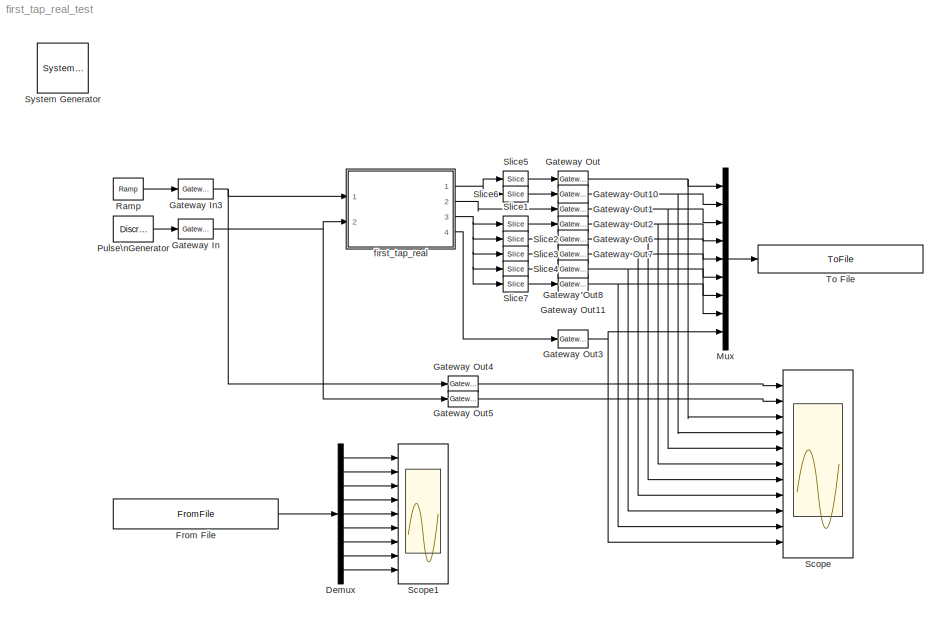
MODEL first_tap_real_test
KIND model
BLOCK [Reference]  System Generator  REF=xbsIndex_r4/ System Generator
  AttributesFormatString = System\\nGenerator
  FunctionWithSeparateData = off
  Ports = []
  RTWMemSecDataConstants = Inherit from model
  RTWMemSecDataInternal = Inherit from model
  RTWMemSecDataParameters = Inherit from model
  RTWMemSecFuncExecute = Inherit from model
  RTWMemSecFuncInitTerm = Inherit from model
  ShowPortLabels = FromPortIcon
  SourceBlock = xbsIndex_r4/ System Generator
  SourceType = Xilinx System Generator Block
  SystemSampleTime = -1
  Tag = genX
  UserData = DataTag0
  UserDataPersistent = on
  block_type = sysgen
  block_version = 10.1.1
  clock_wrapper = Clock Enables
  core_generation = According to Block Masks
  dbl_ovrd = According to Block Masks
  dcm_input_clock_period = 100
  deprecated_control = off
  directory = ./netlist
  eval_field = 0
  has_advanced_control = 0
  incr_netlist = off
  infoedit = System Generator
  package = ff668
  part = xc4vsx35
  run_coregen = off
  sg_icon_stat = 51,50,-1,-1,red,beige,0,07734,right
  sg_mask_display = fprintf('','COMMENT: begin icon graphics');\npatch([0 51 51 0 ],[0 0 50 50 ],[0.93 0.92 0.86]);\npatch([12 4 16 4 12 25 29 33 47 36 25 17 29 17 25 36 47 33 29 25 12 ],[5 13 25 37 45 45 41 45 45 34 45 37 25 13 5 16 5 5 9 5 5 ],[0.6 0.2 0.25]);\nplot([0 51 51 0 0 ],[0 0 50 50 0 ]);\nfprintf('','COMMENT: end icon graphics');\nfprintf('','COMMENT: begin icon text');\nfprintf('','COMMENT: end icon text...<+5ch>
  sggui_pos = -1,-1,-1,-1
  simulink_period = 1
  speed = -10
  synthesis_tool = XST
  sysclk_period = 100
  testbench = off
  trim_vbits = Everywhere in SubSystem
  xilinxfamily = Virtex4
BLOCK [Demux] Demux
  DisplayOption = bar
  Outputs = 9
  Ports = [1, 9]
BLOCK [FromFile] From File
  FileName = first_tap_real_test_reference.mat
  SampleTime = 1
BLOCK [Reference] Gateway In  REF=xbsIndex_r4/Gateway In
  LOCs = {}
  Ports = [1, 1]
  SourceBlock = xbsIndex_r4/Gateway In
  SourceType = Xilinx Gateway In Block
  arith_type = Boolean
  bin_pt = 14
  block_type = gatewayin
  block_version = 10.1.1
  dbl_ovrd = off
  has_advanced_control = 0
  infoedit = Gateway in block.  Converts inputs of type Simulink integer, double and fixed point to  Xilinx fixed point type.<P><P>Hardware notes:  In hardware these blocks become top level input ports.
  locs_specified = off
  n_bits = 16
  overflow = Saturate
  period = 1
  quantization = Round  (unbiased: +/- Inf)
  sg_icon_stat = 35,20,1,1,white,yellow,0,bc55d28f,right
  sg_mask_display = fprintf('','COMMENT: begin icon graphics');\npatch([0 65 65 0 ],[0 0 20 20 ],[0.95 0.93 0.65]);\npatch([27 24 29 24 27 32 33 34 40 36 32 29 34 29 32 36 40 34 33 32 27 ],[2 5 10 15 18 18 17 18 18 14 18 15 10 5 2 6 2 2 3 2 2 ],[0.98 0.96 0.92]);\nplot([0 65 65 0 0 ],[0 0 20 20 0 ]);\nfprintf('','COMMENT: end icon graphics');\nfprintf('','COMMENT: begin icon text');\ncolor('black');port_label('input'...<+131ch>
  sggui_pos = 2118,179,407,458
  timing_constraint = None
  xl_area = [0,0,0,0,0,0,0]
  xl_use_area = off
BLOCK [Reference] Gateway In3  REF=xbsIndex_r4/Gateway In
  LOCs = {}
  Ports = [1, 1]
  SourceBlock = xbsIndex_r4/Gateway In
  SourceType = Xilinx Gateway In Block
  arith_type = Signed  (2's comp)
  bin_pt = 15
  block_type = gatewayin
  block_version = 10.1.1
  dbl_ovrd = off
  has_advanced_control = 0
  infoedit = Gateway in block.  Converts inputs of type Simulink integer, double and fixed point to  Xilinx fixed point type.<P><P>Hardware notes:  In hardware these blocks become top level input ports.
  locs_specified = off
  n_bits = 16
  overflow = Wrap
  period = 1
  quantization = Truncate
  sg_icon_stat = 35,20,1,1,white,yellow,0,bc55d28f,right
  sg_mask_display = fprintf('','COMMENT: begin icon graphics');\npatch([0 65 65 0 ],[0 0 20 20 ],[0.95 0.93 0.65]);\npatch([27 24 29 24 27 32 33 34 40 36 32 29 34 29 32 36 40 34 33 32 27 ],[2 5 10 15 18 18 17 18 18 14 18 15 10 5 2 6 2 2 3 2 2 ],[0.98 0.96 0.92]);\nplot([0 65 65 0 0 ],[0 0 20 20 0 ]);\nfprintf('','COMMENT: end icon graphics');\nfprintf('','COMMENT: begin icon text');\ncolor('black');port_label('input'...<+131ch>
  sggui_pos = 1997,181,407,458
  timing_constraint = None
  xl_area = [0,0,0,0,0,0,0]
  xl_use_area = off
BLOCK [Reference] Gateway Out  REF=xbsIndex_r4/Gateway Out
  LOCs = {}
  Ports = [1, 1]
  SourceBlock = xbsIndex_r4/Gateway Out
  SourceType = Xilinx Gateway Out Block
  block_type = gatewayout
  block_version = 10.1.1
  has_advanced_control = 0
  hdl_port = on
  infoedit = Gateway out block.  Converts Xilinx fixed point inputs into ouputs of type Simulink integer, double, or fixed point.<P><P>Hardware notes:  In hardware these blocks become top level output ports or are discarded, depending on how they are configured.  <repeated x11 — deduplicated; at blocks: Gateway Out, Gateway Out1, Gateway Out10, Gateway Out11, Gateway Out2, Gateway Out3, Gateway Out4, Gateway Out5, Gateway Out6, Gateway Out7, Gateway Out8>
  locs_specified = off
  sg_icon_stat = 30,16,1,1,white,yellow,0,38220381,right
  sg_mask_display = fprintf('','COMMENT: begin icon graphics');\npatch([0 30 30 0 ],[0 0 16 16 ],[0.95 0.93 0.65]);\npatch([11 8 12 8 11 15 16 17 22 18 15 13 17 13 15 18 22 17 16 15 11 ],[2 5 9 13 16 16 15 16 16 12 15 13 9 5 3 6 2 2 3 2 2 ],[0.98 0.96 0.92]);\nplot([0 30 30 0 0 ],[0 0 16 16 0 ]);\nfprintf('','COMMENT: end icon graphics');\nfprintf('','COMMENT: begin icon text');\ncolor('black');port_label('input',1,'...<+128ch>  <repeated x5 — deduplicated; at blocks: Gateway Out, Gateway Out1, Gateway Out2, Gateway Out4, Gateway Out5>
  sggui_pos = -1,-1,-1,-1
  timing_constraint = None
  xl_area = [0,0,0,0,0,0,0]
  xl_use_area = off
BLOCK [Reference] Gateway Out1  REF=xbsIndex_r4/Gateway Out
  LOCs = {}
  Ports = [1, 1]
  SourceBlock = xbsIndex_r4/Gateway Out
  SourceType = Xilinx Gateway Out Block
  block_type = gatewayout
  block_version = 10.1.1
  has_advanced_control = 0
  hdl_port = on
  locs_specified = off
  sg_icon_stat = 30,16,1,1,white,yellow,0,38220381,right
  sggui_pos = -1,-1,-1,-1
  timing_constraint = None
  xl_area = [0,0,0,0,0,0,0]
  xl_use_area = off
BLOCK [Reference] Gateway Out10  REF=xbsIndex_r4/Gateway Out
  LOCs = {}
  Ports = [1, 1]
  SourceBlock = xbsIndex_r4/Gateway Out
  SourceType = Xilinx Gateway Out Block
  block_type = gatewayout
  block_version = 10.1.1
  has_advanced_control = 0
  hdl_port = on
  locs_specified = off
  sg_icon_stat = 30,18,1,1,white,yellow,0,38220381,right
  sg_mask_display = fprintf('','COMMENT: begin icon graphics');\npatch([0 30 30 0 ],[0 0 18 18 ],[0.95 0.93 0.65]);\npatch([10 7 11 7 10 15 16 17 22 18 14 11 15 11 14 18 22 17 16 15 10 ],[2 5 9 13 16 16 15 16 16 12 16 13 9 5 2 6 2 2 3 2 2 ],[0.98 0.96 0.92]);\nplot([0 30 30 0 0 ],[0 0 18 18 0 ]);\nfprintf('','COMMENT: end icon graphics');\nfprintf('','COMMENT: begin icon text');\ncolor('black');port_label('input',1,'...<+128ch>  <repeated x6 — deduplicated; at blocks: Gateway Out10, Gateway Out11, Gateway Out3, Gateway Out6, Gateway Out7, Gateway Out8>
  sggui_pos = -1,-1,-1,-1
  timing_constraint = None
  xl_area = [0,0,0,0,0,0,0]
  xl_use_area = off
BLOCK [Reference] Gateway Out11  REF=xbsIndex_r4/Gateway Out
  LOCs = {}
  Ports = [1, 1]
  SourceBlock = xbsIndex_r4/Gateway Out
  SourceType = Xilinx Gateway Out Block
  block_type = gatewayout
  block_version = 10.1.1
  has_advanced_control = 0
  hdl_port = on
  locs_specified = off
  sg_icon_stat = 30,18,1,1,white,yellow,0,38220381,right
  sggui_pos = -1,-1,-1,-1
  timing_constraint = None
  xl_area = [0,0,0,0,0,0,0]
  xl_use_area = off
BLOCK [Reference] Gateway Out2  REF=xbsIndex_r4/Gateway Out
  LOCs = {}
  Ports = [1, 1]
  SourceBlock = xbsIndex_r4/Gateway Out
  SourceType = Xilinx Gateway Out Block
  block_type = gatewayout
  block_version = 10.1.1
  has_advanced_control = 0
  hdl_port = on
  locs_specified = off
  sg_icon_stat = 30,16,1,1,white,yellow,0,38220381,right
  sggui_pos = -1,-1,-1,-1
  timing_constraint = None
  xl_area = [0,0,0,0,0,0,0]
  xl_use_area = off
BLOCK [Reference] Gateway Out3  REF=xbsIndex_r4/Gateway Out
  LOCs = {}
  Ports = [1, 1]
  SourceBlock = xbsIndex_r4/Gateway Out
  SourceType = Xilinx Gateway Out Block
  block_type = gatewayout
  block_version = 10.1.1
  has_advanced_control = 0
  hdl_port = on
  locs_specified = off
  sg_icon_stat = 30,18,1,1,white,yellow,0,38220381,right
  sggui_pos = 20,20,389,431
  timing_constraint = None
  xl_area = [0,0,0,0,0,0,0]
  xl_use_area = off
BLOCK [Reference] Gateway Out4  REF=xbsIndex_r4/Gateway Out
  LOCs = {}
  Ports = [1, 1]
  SourceBlock = xbsIndex_r4/Gateway Out
  SourceType = Xilinx Gateway Out Block
  block_type = gatewayout
  block_version = 10.1.1
  has_advanced_control = 0
  hdl_port = on
  locs_specified = off
  sg_icon_stat = 30,16,1,1,white,yellow,0,38220381,right
  sggui_pos = -1,-1,-1,-1
  timing_constraint = None
  xl_area = [0,0,0,0,0,0,0]
  xl_use_area = off
BLOCK [Reference] Gateway Out5  REF=xbsIndex_r4/Gateway Out
  LOCs = {}
  Ports = [1, 1]
  SourceBlock = xbsIndex_r4/Gateway Out
  SourceType = Xilinx Gateway Out Block
  block_type = gatewayout
  block_version = 10.1.1
  has_advanced_control = 0
  hdl_port = on
  locs_specified = off
  sg_icon_stat = 30,16,1,1,white,yellow,0,38220381,right
  sggui_pos = -1,-1,-1,-1
  timing_constraint = None
  xl_area = [0,0,0,0,0,0,0]
  xl_use_area = off
BLOCK [Reference] Gateway Out6  REF=xbsIndex_r4/Gateway Out
  LOCs = {}
  Ports = [1, 1]
  SourceBlock = xbsIndex_r4/Gateway Out
  SourceType = Xilinx Gateway Out Block
  block_type = gatewayout
  block_version = 10.1.1
  has_advanced_control = 0
  hdl_port = on
  locs_specified = off
  sg_icon_stat = 30,18,1,1,white,yellow,0,38220381,right
  sggui_pos = -1,-1,-1,-1
  timing_constraint = None
  xl_area = [0,0,0,0,0,0,0]
  xl_use_area = off
BLOCK [Reference] Gateway Out7  REF=xbsIndex_r4/Gateway Out
  LOCs = {}
  Ports = [1, 1]
  SourceBlock = xbsIndex_r4/Gateway Out
  SourceType = Xilinx Gateway Out Block
  block_type = gatewayout
  block_version = 10.1.1
  has_advanced_control = 0
  hdl_port = on
  locs_specified = off
  sg_icon_stat = 30,18,1,1,white,yellow,0,38220381,right
  sggui_pos = -1,-1,-1,-1
  timing_constraint = None
  xl_area = [0,0,0,0,0,0,0]
  xl_use_area = off
BLOCK [Reference] Gateway Out8  REF=xbsIndex_r4/Gateway Out
  LOCs = {}
  Ports = [1, 1]
  SourceBlock = xbsIndex_r4/Gateway Out
  SourceType = Xilinx Gateway Out Block
  block_type = gatewayout
  block_version = 10.1.1
  has_advanced_control = 0
  hdl_port = on
  locs_specified = off
  sg_icon_stat = 30,18,1,1,white,yellow,0,38220381,right
  sggui_pos = -1,-1,-1,-1
  timing_constraint = None
  xl_area = [0,0,0,0,0,0,0]
  xl_use_area = off
BLOCK [Mux] Mux
  DisplayOption = bar
  Inputs = 9
  Ports = [9, 1]
BLOCK [DiscretePulseGenerator] Pulse\nGenerator
  Period = 16
  PhaseDelay = 7
  Ports = [0, 1]
BLOCK [Reference] Ramp  REF=simulink/Sources/Ramp
  FunctionWithSeparateData = off
  Ports = [0, 1]
  RTWMemSecDataConstants = Inherit from model
  RTWMemSecDataInternal = Inherit from model
  RTWMemSecDataParameters = Inherit from model
  RTWMemSecFuncExecute = Inherit from model
  RTWMemSecFuncInitTerm = Inherit from model
  ShowPortLabels = FromPortIcon
  SourceBlock = simulink/Sources/Ramp
  SourceType = Ramp
  SystemSampleTime = -1
  VectorParams1D = on
  X0 = 0
  slope = 1/64
  start = 0
BLOCK [Scope] Scope
  DataFormat = StructureWithTime
  Floating = off
  NumInputPorts = 11
  Ports = [11]
  SampleTime = 0
  YMax = 1~2~1~5~5~5~5~5~5~5~5
  YMin = -1~-1~-1~-5~-5~-5~-5~-5~-5~-5~-5
BLOCK [Scope] Scope1
  DataFormat = StructureWithTime
  Floating = off
  NumInputPorts = 9
  Ports = [9]
  SampleTime = 0
  SaveName = ScopeData1
  YMax = 5~5~5~5~5~5~5~5~5
  YMin = -5~-5~-5~-5~-5~-5~-5~-5~-5
BLOCK [Reference] Slice1  REF=xbsIndex_r4/Slice
  Ports = [1, 1]
  SourceBlock = xbsIndex_r4/Slice
  SourceType = Xilinx Bit Slice Extractor Block
  base0 = MSB of Input
  base1 = MSB of Input
  bit0 = -9
  bit1 = 0
  block_type = slice
  block_version = 10.1.1
  boolean_output = off
  dbl_ovrd = off
  has_advanced_control = 0
  infoedit = Extracts a given range of bits from each input sample and presents it at the output.  The output type is ordinarily unsigned with binary point at zero, but can be Boolean when the slice is one bit wide.<P><P>Hardware notes: In hardware this block costs nothing.  <repeated x9 — deduplicated; at blocks: Slice1, Slice2, Slice3, Slice4, Slice5, Slice6, Slice7, Slice>
  mode = Two Bit Locations
  nbits = 6
  sg_icon_stat = 25,16,1,1,white,blue,0,b1026674,right
  sg_mask_display = fprintf('','COMMENT: begin icon graphics');\npatch([0 60 60 0 ],[0 0 30 30 ],[0.77 0.82 0.91]);\npatch([22 17 24 17 22 30 32 34 42 35 29 24 30 24 29 35 42 34 32 30 22 ],[3 8 15 22 27 27 25 27 27 20 26 21 15 9 4 10 3 3 5 3 3 ],[0.98 0.96 0.92]);\nplot([0 60 60 0 0 ],[0 0 30 30 0 ]);\nfprintf('','COMMENT: end icon graphics');\nfprintf('','COMMENT: begin icon text');\ncolor('black');port_label('outpu...<+55ch>  <repeated x9 — deduplicated; at blocks: Slice1, Slice2, Slice3, Slice4, Slice5, Slice6, Slice7, Slice>
  sggui_pos = 1819,149,533,427
BLOCK [Reference] Slice2  REF=xbsIndex_r4/Slice
  Ports = [1, 1]
  SourceBlock = xbsIndex_r4/Slice
  SourceType = Xilinx Bit Slice Extractor Block
  base0 = MSB of Input
  base1 = MSB of Input
  bit0 = -19
  bit1 = -10
  block_type = slice
  block_version = 10.1.1
  boolean_output = off
  dbl_ovrd = off
  has_advanced_control = 0
  mode = Two Bit Locations
  nbits = 6
  sg_icon_stat = 25,16,1,1,white,blue,0,b1026674,right
  sggui_pos = 1819,239,533,427
BLOCK [Reference] Slice3  REF=xbsIndex_r4/Slice
  Ports = [1, 1]
  SourceBlock = xbsIndex_r4/Slice
  SourceType = Xilinx Bit Slice Extractor Block
  base0 = MSB of Input
  base1 = MSB of Input
  bit0 = -29
  bit1 = -20
  block_type = slice
  block_version = 10.1.1
  boolean_output = off
  dbl_ovrd = off
  has_advanced_control = 0
  mode = Two Bit Locations
  nbits = 6
  sg_icon_stat = 25,16,1,1,white,blue,0,b1026674,right
  sggui_pos = 1819,244,533,427
BLOCK [Reference] Slice4  REF=xbsIndex_r4/Slice
  Ports = [1, 1]
  SourceBlock = xbsIndex_r4/Slice
  SourceType = Xilinx Bit Slice Extractor Block
  base0 = MSB of Input
  base1 = MSB of Input
  bit0 = -39
  bit1 = -30
  block_type = slice
  block_version = 10.1.1
  boolean_output = off
  dbl_ovrd = off
  has_advanced_control = 0
  mode = Two Bit Locations
  nbits = 6
  sg_icon_stat = 25,16,1,1,white,blue,0,b1026674,right
  sggui_pos = 2147,187,533,427
BLOCK [Reference] Slice5  REF=xbsIndex_r4/Slice
  Ports = [1, 1]
  SourceBlock = xbsIndex_r4/Slice
  SourceType = Xilinx Bit Slice Extractor Block
  base0 = MSB of Input
  base1 = MSB of Input
  bit0 = -7
  bit1 = 0
  block_type = slice
  block_version = 10.1.1
  boolean_output = off
  dbl_ovrd = off
  has_advanced_control = 0
  mode = Two Bit Locations
  nbits = 6
  sg_icon_stat = 25,16,1,1,white,blue,0,b1026674,right
  sggui_pos = 2055,90,533,427
BLOCK [Reference] Slice6  REF=xbsIndex_r4/Slice
  Ports = [1, 1]
  SourceBlock = xbsIndex_r4/Slice
  SourceType = Xilinx Bit Slice Extractor Block
  base0 = MSB of Input
  base1 = MSB of Input
  bit0 = -7
  bit1 = 0
  block_type = slice
  block_version = 10.1.1
  boolean_output = off
  dbl_ovrd = off
  has_advanced_control = 0
  mode = Two Bit Locations
  nbits = 6
  sg_icon_stat = 25,16,1,1,white,blue,0,b1026674,right
  sggui_pos = 2055,90,533,427
BLOCK [Reference] Slice7  REF=xbsIndex_r4/Slice
  Ports = [1, 1]
  SourceBlock = xbsIndex_r4/Slice
  SourceType = Xilinx Bit Slice Extractor Block
  base0 = MSB of Input
  base1 = MSB of Input
  bit0 = -39
  bit1 = -30
  block_type = slice
  block_version = 10.1.1
  boolean_output = off
  dbl_ovrd = off
  has_advanced_control = 0
  mode = Two Bit Locations
  nbits = 6
  sg_icon_stat = 25,16,1,1,white,blue,0,b1026674,right
  sggui_pos = 2147,187,533,427
BLOCK [ToFile] To File
  Filename = first_tap_real_test_output.mat
  MatrixName = output
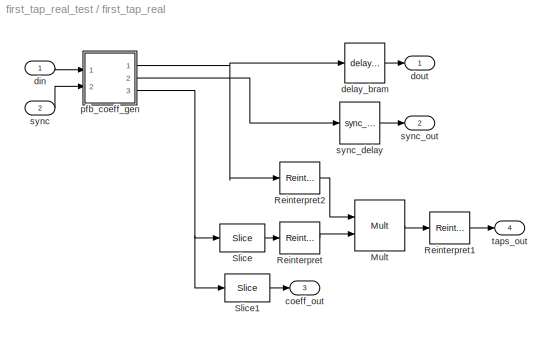
BLOCK [SubSystem] first_tap_real
  AncestorBlock = casper_library/PFBs/first_tap_real
  AttributesFormatString = input=0, taps=6
  FunctionWithSeparateData = off
  MaskCallbackString = ||||||||||
  MaskEnableString = on,on,on,on,on,on,on,on,on,on,on
  MaskIconFrame = on
  MaskIconOpaque = on
  MaskIconRotate = none
  MaskIconUnits = autoscale
  MaskInitialization = first_tap_real_init(gcb,...\n    'nput', nput,...\n    'PFBSize', PFBSize,...\n    'CoeffBitWidth', CoeffBitWidth,...\n    'TotalTaps', TotalTaps,...\n    'BitWidthIn', BitWidthIn,...\n    'CoeffDistMem', CoeffDistMem,...\n    'WindowType', WindowType,...\n    'mult_latency', mult_latency,...\n    'bram_latency', bram_latency,...\n    'n_inputs', n_inputs,...\n    'fwidth', fwidth);
  MaskPromptString = This is input number:|Size of PFB: (2^? pnts)|Bitwidth of Coefficients:|Total Number of Taps:|Input Bitwidth:|Implement Coeff Gen in Distributed Memory:|Windowing Function:|Mult Latency|BRAM Latency|Number of Simultaneous Inputs: (2^?)|Bit Width (normal=1)
  MaskSelfModifiable = on
  MaskStyleString = edit,edit,edit,edit,edit,edit,popup(bartlett|barthannwin|blackman|blackmanharris|bohamwin|chebwin|flattopwin|gausswin|hamming|hann|kaiser|nuttallwin|parzenwin|rectwin|tukeywin|triang|userwindow),edit,edit,edit,edit
  MaskTabNameString = ,,,,,,,,,,
  MaskToolTipString = on,on,on,on,on,on,on,on,on,on,on
  MaskTunableValueString = on,on,on,on,on,on,on,on,on,on,on
  MaskType = first_tap_real
  MaskValueString = 0|4|10|6|16|1|chebwin|3|1|2|0.5
  MaskVarAliasString = ,,,,,,,,,,
  MaskVariables = nput=@1;PFBSize=@2;CoeffBitWidth=@3;TotalTaps=@4;BitWidthIn=@5;CoeffDistMem=@6;WindowType=&7;mult_latency=@8;bram_latency=@9;n_inputs=@10;fwidth=@11;
  MaskVisibilityString = on,on,on,on,on,on,on,on,on,on,on
  MinAlgLoopOccurrences = off
  Ports = [2, 4]
  RTWSystemCode = Auto
  UserData = DataTag1
  UserDataPersistent = on
BLOCK [Reference] first_tap_real/Mult  REF=xbsIndex_r4/Mult
  Ports = [2, 1]
  SourceBlock = xbsIndex_r4/Mult
  SourceType = Xilinx Multiplier Block
  arith_type = Signed  (2's comp)
  bin_pt = 2
  block_type = mult
  block_version = 9.1.01
  dbl_ovrd = off
  en = off
  has_advanced_control = 0
  infoedit = Hardware notes: To use the internal pipeline stage of the dedicated multiplier you must select 'Pipeline for maximum performance'.
  latency = mult_latency
  n_bits = 8
  opt = Speed
  optimum_pipeline = off
  overflow = Wrap
  pipeline = on
  placement_style = Rectangular shape
  precision = Full
  quantization = Truncate
  sg_icon_stat = 50,51,1,1,white,blue,0,9c0d74db,right
  sg_mask_display = fprintf('','COMMENT: begin icon graphics');\npatch([0 55 55 0 ],[0 0 55 55 ],[0.77 0.82 0.91]);\npatch([13 4 17 4 13 28 32 36 52 40 28 19 32 19 28 40 52 36 32 28 13 ],[6 15 28 41 50 50 46 50 50 38 50 41 28 15 6 18 6 6 10 6 6 ],[0.98 0.96 0.92]);\nplot([0 55 55 0 0 ],[0 0 55 55 0 ]);\nfprintf('','COMMENT: end icon graphics');\nfprintf('','COMMENT: begin icon text');\ncolor('black');port_label('inpu...<+212ch>
  sggui_pos = -1,-1,-1,-1
  use_behavioral_HDL = off
  use_embedded = on
  use_rpm = on
  xl_area = [0, 0, 0, 0, 0, 0, 0]
  xl_use_area = off
BLOCK [Reference] first_tap_real/Reinterpret  REF=xbsIndex_r4/Reinterpret
  Ports = [1, 1]
  SourceBlock = xbsIndex_r4/Reinterpret
  SourceType = Xilinx Type Reinterpreter Block
  arith_type = Signed  (2's comp)
  bin_pt = CoeffBitWidth - 1
  block_type = reinterpret
  block_version = 9.1.01
  force_arith_type = on
  force_bin_pt = on
  has_advanced_control = 0
  infoedit = Changes signal type without altering the binary representation.   You can changed the signal between signed and unsigned, and relocate the binary point.<P><P>Hardware notes: In hardware this block costs nothing.<P><P>Example:  Suppose the input is 6 bits wide, signed, with 2 fractional bits, and the output is forced to unsigned with 0 fractional bits.  Then an input of -2.0 (1110.00 in binary 2's ...<+55ch>  <repeated x9 — deduplicated; at blocks: Reinterpret, Reinterpret1, Reinterpret2, Reinterpret3, Reinterpret4, Reinterpret5, Reinterpret6>
  sg_icon_stat = 40,32,1,1,white,blue,0,8982c1db,right
  sg_mask_display = fprintf('','COMMENT: begin icon graphics');\npatch([0 40 40 0 ],[0 0 32 32 ],[0.77 0.82 0.91]);\npatch([11 6 13 6 11 19 21 23 32 25 18 13 20 13 18 25 32 23 21 19 11 ],[3 8 15 22 27 27 25 27 27 20 27 22 15 8 3 10 3 3 5 3 3 ],[0.98 0.96 0.92]);\nplot([0 0 40 40 0 ],[0 32 32 0 0 ]);\nfprintf('','COMMENT: end icon graphics');\nfprintf('','COMMENT: begin icon text');\ncolor('black');disp('reinterpret')...<+42ch>
  sggui_pos = -1,-1,-1,-1
BLOCK [Reference] first_tap_real/Reinterpret1  REF=xbsIndex_r4/Reinterpret
  Ports = [1, 1]
  SourceBlock = xbsIndex_r4/Reinterpret
  SourceType = Xilinx Type Reinterpreter Block
  arith_type = Unsigned
  bin_pt = 0
  block_type = reinterpret
  block_version = 9.1.01
  force_arith_type = on
  force_bin_pt = on
  has_advanced_control = 0
  sg_icon_stat = 40,32,1,1,white,blue,0,8982c1db,right
  sg_mask_display = fprintf('','COMMENT: begin icon graphics');\npatch([0 50 50 0 ],[0 0 32 32 ],[0.77 0.82 0.91]);\npatch([16 11 18 11 16 24 26 28 37 30 23 18 25 18 23 30 37 28 26 24 16 ],[3 8 15 22 27 27 25 27 27 20 27 22 15 8 3 10 3 3 5 3 3 ],[0.98 0.96 0.92]);\nplot([0 50 50 0 0 ],[0 0 32 32 0 ]);\nfprintf('','COMMENT: end icon graphics');\nfprintf('','COMMENT: begin icon text');\ncolor('black');disp('reinterpret...<+44ch>  <repeated x5 — deduplicated; at blocks: Reinterpret1, Reinterpret2, Reinterpret3, Reinterpret4>
  sggui_pos = -1,-1,-1,-1
BLOCK [Reference] first_tap_real/Reinterpret2  REF=xbsIndex_r4/Reinterpret
  Ports = [1, 1]
  SourceBlock = xbsIndex_r4/Reinterpret
  SourceType = Xilinx Type Reinterpreter Block
  arith_type = Signed  (2's comp)
  bin_pt = BitWidthIn - 1
  block_type = reinterpret
  block_version = 9.1.01
  force_arith_type = on
  force_bin_pt = on
  has_advanced_control = 0
  sg_icon_stat = 40,32,1,1,white,blue,0,8982c1db,right
  sg_mask_display = fprintf('','COMMENT: begin icon graphics');\npatch([0 40 40 0 ],[0 0 32 32 ],[0.77 0.82 0.91]);\npatch([11 6 13 6 11 19 21 23 32 25 18 13 20 13 18 25 32 23 21 19 11 ],[3 8 15 22 27 27 25 27 27 20 27 22 15 8 3 10 3 3 5 3 3 ],[0.98 0.96 0.92]);\nplot([0 0 40 40 0 ],[0 32 32 0 0 ]);\nfprintf('','COMMENT: end icon graphics');\nfprintf('','COMMENT: begin icon text');\ncolor('black');disp('reinterpret')...<+42ch>
  sggui_pos = -1,-1,-1,-1
BLOCK [Reference] first_tap_real/Slice  REF=xbsIndex_r4/Slice
  Ports = [1, 1]
  SourceBlock = xbsIndex_r4/Slice
  SourceType = Xilinx Bit Slice Extractor Block
  base0 = LSB of Input
  base1 = MSB of Input
  bit0 = 0
  bit1 = 0
  block_type = slice
  block_version = 9.1.01
  boolean_output = off
  dbl_ovrd = off
  has_advanced_control = 0
  mode = Lower Bit Location + Width
  nbits = CoeffBitWidth
  sg_icon_stat = 45,28,1,1,white,blue,0,b1026674,right
  sggui_pos = -1,-1,-1,-1
BLOCK [Reference] first_tap_real/Slice1  REF=xbsIndex_r4/Slice
  Ports = [1, 1]
  SourceBlock = xbsIndex_r4/Slice
  SourceType = Xilinx Bit Slice Extractor Block
  base0 = LSB of Input
  base1 = MSB of Input
  bit0 = CoeffBitWidth
  bit1 = 0
  block_type = slice
  block_version = 9.1.01
  boolean_output = off
  dbl_ovrd = off
  has_advanced_control = 0
  mode = Two Bit Locations
  nbits = CoeffBitWidth * (TotalTaps - 1)
  sg_icon_stat = 45,28,1,1,white,blue,0,b1026674,right
  sggui_pos = -1,-1,-1,-1
BLOCK [Outport] first_tap_real/coeff_out
  IconDisplay = Port number
  OutDataType = sfix(16)
  OutScaling = 2^0
  Port = 3
BLOCK [Reference] first_tap_real/delay_bram  REF=casper_library/Delays/delay_bram  (lib defined in mdl_138b2fc3435f, mdl_4ed325b712b3, +2 more)
  DelayLen = 2^(PFBSize-n_inputs)
  FunctionWithSeparateData = off
  Ports = [1, 1]
  RTWMemSecDataConstants = Inherit from model
  RTWMemSecDataInternal = Inherit from model
  RTWMemSecDataParameters = Inherit from model
  RTWMemSecFuncExecute = Inherit from model
  RTWMemSecFuncInitTerm = Inherit from model
  ShowPortLabels = FromPortIcon
  SourceBlock = casper_library/Delays/delay_bram
  SourceType = delay_bram
  SystemSampleTime = -1
  bram_latency = bram_latency
BLOCK [Inport] first_tap_real/din
  IconDisplay = Port number
  OutDataType = sfix(16)
  OutScaling = 2^0
BLOCK [Outport] first_tap_real/dout
  IconDisplay = Port number
  OutDataType = sfix(16)
  OutScaling = 2^0
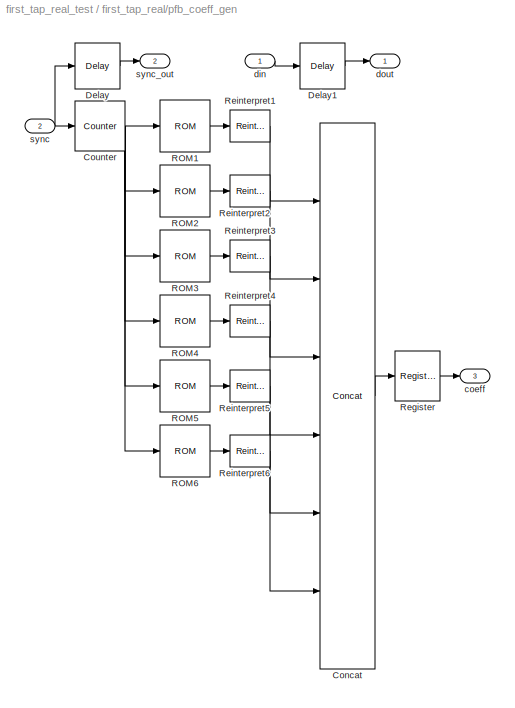
BLOCK [SubSystem] first_tap_real/pfb_coeff_gen
  AncestorBlock = casper_library/PFBs/pfb_coeff_gen
  AttributesFormatString = PFBSize=4, n_inputs=2, taps=6
  FunctionWithSeparateData = off
  MaskCallbackString = ||||||||
  MaskEnableString = on,on,on,on,on,on,on,on,on
  MaskIconFrame = on
  MaskIconOpaque = on
  MaskIconRotate = none
  MaskIconUnits = autoscale
  MaskInitialization = pfb_coeff_gen_init(gcb, ...\n    'PFBSize', PFBSize, ...\n    'CoeffBitWidth', CoeffBitWidth, ...\n    'TotalTaps', TotalTaps, ...\n    'CoeffDistMem', CoeffDistMem, ...\n    'WindowType', WindowType, ...\n    'bram_latency', bram_latency, ...\n    'n_inputs', n_inputs, ...\n    'nput', nput, ...\n    'fwidth', fwidth);
  MaskPromptString = Size of PFB: (2^? pnts)|Bitwidth of Coefficients:|Total Number of Taps:|Implement Coeff Gen in Distributed Memory|Windowing Function: |BRAM Latency|Number of Simultaneous Inputs: (2^?)|This is input number:|Bin Width (normal=1)
  MaskSelfModifiable = on
  MaskStyleString = edit,edit,edit,edit,edit,edit,edit,edit,edit
  MaskTabNameString = ,,,,,,,,
  MaskToolTipString = on,on,on,on,on,on,on,on,on
  MaskTunableValueString = on,on,on,on,on,on,on,on,on
  MaskType = pfb_coeff_gen
  MaskValueString = 4|10|6|1|chebwin|1|2|0|0.5
  MaskVarAliasString = ,,,,,,,,
  MaskVariables = PFBSize=@1;CoeffBitWidth=@2;TotalTaps=@3;CoeffDistMem=@4;WindowType=&5;bram_latency=@6;n_inputs=@7;nput=@8;fwidth=@9;
  MaskVisibilityString = on,on,on,on,on,on,on,on,on
  MinAlgLoopOccurrences = off
  Ports = [2, 3]
  RTWSystemCode = Auto
  UserData = DataTag2
  UserDataPersistent = on
BLOCK [Reference] first_tap_real/pfb_coeff_gen/Concat  REF=xbsIndex_r4/Concat
  Ports = [6, 1]
  SourceBlock = xbsIndex_r4/Concat
  SourceType = Xilinx Bus Concatenator Block
  block_type = concat
  block_version = 9.1.01
  dbl_ovrd = off
  has_advanced_control = 0
  infoedit = Concatenates two or more inputs.  Output will be cast to an unsigned value with the binary point at zero.
  num_inputs = 6
  sg_icon_stat = 55,546,1,1,white,blue,0,36109ac2,right
  sg_mask_display = fprintf('','COMMENT: begin icon graphics');\npatch([0 55 55 0 ],[0 0 546 546 ],[0.77 0.82 0.91]);\npatch([13 4 17 4 13 28 32 36 52 40 28 19 32 19 28 40 52 36 32 28 13 ],[251 260 273 286 295 295 291 295 295 283 295 286 273 260 251 263 251 251 255 251 251 ],[0.98 0.96 0.92]);\nplot([0 55 55 0 0 ],[0 0 546 546 0 ]);\nfprintf('','COMMENT: end icon graphics');\nfprintf('','COMMENT: begin icon text');\n...<+127ch>
  sggui_pos = -1,-1,-1,-1
BLOCK [Reference] first_tap_real/pfb_coeff_gen/Counter  REF=xbsIndex_r4/Counter
  Ports = [1, 1]
  SourceBlock = xbsIndex_r4/Counter
  SourceType = Xilinx Counter Block
  arith_type = Unsigned
  bin_pt = 0
  block_type = counter
  block_version = 9.1.01
  cnt_by_val = 1
  cnt_to = Inf
  cnt_type = Free Running
  dbl_ovrd = off
  en = off
  explicit_period = on
  has_advanced_control = 0
  infoedit = Hardware notes: Free running counters are the least expensive in hardware.  A count limited counter is implemented by combining a counter with a comparator.
  load_pin = off
  n_bits = 2
  operation = Up
  period = 1
  rst = on
  sg_icon_stat = 50,50,1,1,white,blue,0,300e9576,right
  sg_mask_display = fprintf('','COMMENT: begin icon graphics');\npatch([0 60 60 0 ],[0 0 60 60 ],[0.77 0.82 0.91]);\npatch([14 4 18 4 14 30 34 38 55 42 29 20 35 20 29 42 55 38 34 30 14 ],[6 16 30 44 54 54 50 54 54 41 54 45 30 15 6 19 6 6 10 6 6 ],[0.98 0.96 0.92]);\nplot([0 60 60 0 0 ],[0 0 60 60 0 ]);\nfprintf('','COMMENT: end icon graphics');\nfprintf('','COMMENT: begin icon text');\ncolor('black');port_label('inpu...<+99ch>
  sggui_pos = -1,-1,-1,-1
  start_count = 0
  use_behavioral_HDL = off
  use_rpm = on
  xl_area = [0, 0, 0, 0, 0, 0, 0]
  xl_use_area = off
BLOCK [Reference] first_tap_real/pfb_coeff_gen/Delay  REF=xbsIndex_r4/Delay
  Ports = [1, 1]
  SourceBlock = xbsIndex_r4/Delay
  SourceType = Xilinx Delay Block
  block_type = delay
  block_version = 9.1.01
  dbl_ovrd = off
  en = off
  has_advanced_control = 0
  infoedit = Hardware notes: A delay line is a chain, each link of which is an SRL16 followed by a flip-flop.
  latency = bram_latency+1
  reg_retiming = off
  sg_icon_stat = 45,46,1,1,white,blue,0,0a7a6cf1,right
  sg_mask_display = fprintf('','COMMENT: begin icon graphics');\npatch([0 60 60 0 ],[0 0 56 56 ],[0.77 0.82 0.91]);\npatch([15 6 19 6 15 30 34 38 54 41 29 20 32 20 29 41 54 38 34 30 15 ],[6 15 28 41 50 50 46 50 50 37 49 40 28 16 7 19 6 6 10 6 6 ],[0.98 0.96 0.92]);\nplot([0 60 60 0 0 ],[0 0 56 56 0 ]);\nfprintf('','COMMENT: end icon graphics');\nfprintf('','COMMENT: begin icon text');\ncolor('black');disp('z^{-2}','t...<+55ch>
  sggui_pos = -1,-1,-1,-1
  xl_area = [0, 0, 0, 0, 0, 0, 0]
  xl_use_area = off
BLOCK [Reference] first_tap_real/pfb_coeff_gen/Delay1  REF=xbsIndex_r4/Delay
  Ports = [1, 1]
  SourceBlock = xbsIndex_r4/Delay
  SourceType = Xilinx Delay Block
  block_type = delay
  block_version = 9.1.01
  dbl_ovrd = off
  en = off
  has_advanced_control = 0
  infoedit = Hardware notes: A delay line is a chain, each link of which is an SRL16 followed by a flip-flop.
  latency = 2
  reg_retiming = off
  sg_icon_stat = 45,46,1,1,white,blue,0,0a7a6cf1,right
  sg_mask_display = fprintf('','COMMENT: begin icon graphics');\npatch([0 60 60 0 ],[0 0 56 56 ],[0.77 0.82 0.91]);\npatch([15 6 19 6 15 30 34 38 54 41 29 20 32 20 29 41 54 38 34 30 15 ],[6 15 28 41 50 50 46 50 50 37 49 40 28 16 7 19 6 6 10 6 6 ],[0.98 0.96 0.92]);\nplot([0 60 60 0 0 ],[0 0 56 56 0 ]);\nfprintf('','COMMENT: end icon graphics');\nfprintf('','COMMENT: begin icon text');\ncolor('black');disp('z^{-2}','t...<+55ch>
  sggui_pos = -1,-1,-1,-1
  xl_area = [0, 0, 0, 0, 0, 0, 0]
  xl_use_area = off
BLOCK [Reference] first_tap_real/pfb_coeff_gen/ROM1  REF=xbsIndex_r4/ROM
  Ports = [1, 1]
  SourceBlock = xbsIndex_r4/ROM
  SourceType = Xilinx Single Port Read-Only Memory Block
  arith_type = Signed  (2's comp)
  bin_pt = 9
  block_type = sprom
  block_version = 9.1.01
  dbl_ovrd = off
  depth = 4
  distributed_mem = Distributed memory
  en = off
  has_advanced_control = 0
  initVector = pfb_coeff_gen_calc(4, 6,'chebwin',2, 0,0.5,1)
  init_reg = 0
  latency = 1
  n_bits = 10
  optimize = Area
  rst = off
  sg_icon_stat = 50,52,1,1,white,blue,0,a8b86474,right
  sg_mask_display = fprintf('','COMMENT: begin icon graphics');\npatch([0 60 60 0 ],[0 0 56 56 ],[0.77 0.82 0.91]);\npatch([15 6 19 6 15 30 34 38 54 41 29 20 32 20 29 41 54 38 34 30 15 ],[6 15 28 41 50 50 46 50 50 37 49 40 28 16 7 19 6 6 10 6 6 ],[0.98 0.96 0.92]);\nplot([0 60 60 0 0 ],[0 0 56 56 0 ]);\nfprintf('','COMMENT: end icon graphics');\nfprintf('','COMMENT: begin icon text');\ncolor('black');port_label('inpu...<+101ch>  <repeated x4 — deduplicated; at blocks: ROM1, ROM2, ROM3, ROM4>
  sggui_pos = -1,-1,-1,-1
  use_rpm = on
  xl_area = [0, 0, 0, 0, 0, 0, 0]
  xl_use_area = off
BLOCK [Reference] first_tap_real/pfb_coeff_gen/ROM2  REF=xbsIndex_r4/ROM
  Ports = [1, 1]
  SourceBlock = xbsIndex_r4/ROM
  SourceType = Xilinx Single Port Read-Only Memory Block
  arith_type = Signed  (2's comp)
  bin_pt = 9
  block_type = sprom
  block_version = 9.1.01
  dbl_ovrd = off
  depth = 4
  distributed_mem = Distributed memory
  en = off
  has_advanced_control = 0
  initVector = pfb_coeff_gen_calc(4, 6,'chebwin',2, 0,0.5,2)
  init_reg = 0
  latency = 1
  n_bits = 10
  optimize = Area
  rst = off
  sg_icon_stat = 50,52,1,1,white,blue,0,a8b86474,right
  sggui_pos = -1,-1,-1,-1
  use_rpm = on
  xl_area = [0, 0, 0, 0, 0, 0, 0]
  xl_use_area = off
BLOCK [Reference] first_tap_real/pfb_coeff_gen/ROM3  REF=xbsIndex_r4/ROM
  Ports = [1, 1]
  SourceBlock = xbsIndex_r4/ROM
  SourceType = Xilinx Single Port Read-Only Memory Block
  arith_type = Signed  (2's comp)
  bin_pt = 9
  block_type = sprom
  block_version = 9.1.01
  dbl_ovrd = off
  depth = 4
  distributed_mem = Distributed memory
  en = off
  has_advanced_control = 0
  initVector = pfb_coeff_gen_calc(4, 6,'chebwin',2, 0,0.5,3)
  init_reg = 0
  latency = 1
  n_bits = 10
  optimize = Area
  rst = off
  sg_icon_stat = 50,52,1,1,white,blue,0,a8b86474,right
  sggui_pos = -1,-1,-1,-1
  use_rpm = on
  xl_area = [0, 0, 0, 0, 0, 0, 0]
  xl_use_area = off
BLOCK [Reference] first_tap_real/pfb_coeff_gen/ROM4  REF=xbsIndex_r4/ROM
  Ports = [1, 1]
  SourceBlock = xbsIndex_r4/ROM
  SourceType = Xilinx Single Port Read-Only Memory Block
  arith_type = Signed  (2's comp)
  bin_pt = 9
  block_type = sprom
  block_version = 9.1.01
  dbl_ovrd = off
  depth = 4
  distributed_mem = Distributed memory
  en = off
  has_advanced_control = 0
  initVector = pfb_coeff_gen_calc(4, 6,'chebwin',2, 0,0.5,4)
  init_reg = 0
  latency = 1
  n_bits = 10
  optimize = Area
  rst = off
  sg_icon_stat = 50,52,1,1,white,blue,0,a8b86474,right
  sggui_pos = -1,-1,-1,-1
  use_rpm = on
  xl_area = [0, 0, 0, 0, 0, 0, 0]
  xl_use_area = off
BLOCK [Reference] first_tap_real/pfb_coeff_gen/ROM5  REF=xbsIndex_r4/ROM
  Ports = [1, 1]
  SourceBlock = xbsIndex_r4/ROM
  SourceType = Xilinx Single Port Read-Only Memory Block
  arith_type = Signed  (2's comp)
  bin_pt = 9
  block_type = sprom
  block_version = 10.1.1
  dbl_ovrd = off
  depth = 4
  distributed_mem = Distributed memory
  en = off
  has_advanced_control = 0
  initVector = pfb_coeff_gen_calc(4, 6,'chebwin',2, 0,0.5,5)
  init_reg = 0
  latency = 1
  n_bits = 10
  optimize = Area
  rst = off
  sg_icon_stat = 50,52,1,1,white,blue,0,a8b86474,right
  sg_mask_display = fprintf('','COMMENT: begin icon graphics');\npatch([0 50 50 0 ],[0 0 52 52 ],[0.77 0.82 0.91]);\npatch([11 3 15 3 11 24 28 32 46 35 24 16 28 16 24 35 46 32 28 24 11 ],[6 14 26 38 46 46 42 46 46 35 46 38 26 14 6 17 6 6 10 6 6 ],[0.98 0.96 0.92]);\nplot([0 50 50 0 0 ],[0 0 52 52 0 ]);\nfprintf('','COMMENT: end icon graphics');\nfprintf('','COMMENT: begin icon text');\ncolor('black');port_label('inpu...<+101ch>
  sggui_pos = -1,-1,-1,-1
  use_rpm = on
  xl_area = [0,0,0,0,0,0,0]
  xl_use_area = off
BLOCK [Reference] first_tap_real/pfb_coeff_gen/ROM6  REF=xbsIndex_r4/ROM
  Ports = [1, 1]
  SourceBlock = xbsIndex_r4/ROM
  SourceType = Xilinx Single Port Read-Only Memory Block
  arith_type = Signed  (2's comp)
  bin_pt = 9
  block_type = sprom
  block_version = 10.1.1
  dbl_ovrd = off
  depth = 4
  distributed_mem = Distributed memory
  en = off
  has_advanced_control = 0
  initVector = pfb_coeff_gen_calc(4, 6,'chebwin',2, 0,0.5,6)
  init_reg = 0
  latency = 1
  n_bits = 10
  optimize = Area
  rst = off
  sg_icon_stat = 50,52,1,1,white,blue,0,a8b86474,right
  sg_mask_display = fprintf('','COMMENT: begin icon graphics');\npatch([0 50 50 0 ],[0 0 52 52 ],[0.77 0.82 0.91]);\npatch([11 3 15 3 11 24 28 32 46 35 24 16 28 16 24 35 46 32 28 24 11 ],[6 14 26 38 46 46 42 46 46 35 46 38 26 14 6 17 6 6 10 6 6 ],[0.98 0.96 0.92]);\nplot([0 50 50 0 0 ],[0 0 52 52 0 ]);\nfprintf('','COMMENT: end icon graphics');\nfprintf('','COMMENT: begin icon text');\ncolor('black');port_label('inpu...<+101ch>
  sggui_pos = -1,-1,-1,-1
  use_rpm = on
  xl_area = [0,0,0,0,0,0,0]
  xl_use_area = off
BLOCK [Reference] first_tap_real/pfb_coeff_gen/Register  REF=xbsIndex_r4/Register
  Ports = [1, 1]
  SourceBlock = xbsIndex_r4/Register
  SourceType = Xilinx Register Block
  block_type = register
  block_version = 9.1.01
  dbl_ovrd = off
  en = off
  has_advanced_control = 0
  init = 0
  rst = off
  sg_icon_stat = 45,50,1,1,white,blue,0,ac6b57db,right
  sg_mask_display = fprintf('','COMMENT: begin icon graphics');\npatch([0 60 60 0 ],[0 0 56 56 ],[0.77 0.82 0.91]);\npatch([15 6 19 6 15 30 34 38 54 41 29 20 32 20 29 41 54 38 34 30 15 ],[6 15 28 41 50 50 46 50 50 37 49 40 28 16 7 19 6 6 10 6 6 ],[0.98 0.96 0.92]);\nplot([0 60 60 0 0 ],[0 0 56 56 0 ]);\nfprintf('','COMMENT: end icon graphics');\nfprintf('','COMMENT: begin icon text');\ncolor('black');port_label('inpu...<+148ch>
  sggui_pos = -1,-1,-1,-1
  xl_area = [0, 0, 0, 0, 0, 0, 0]
  xl_use_area = off
BLOCK [Reference] first_tap_real/pfb_coeff_gen/Reinterpret1  REF=xbsIndex_r4/Reinterpret
  Ports = [1, 1]
  SourceBlock = xbsIndex_r4/Reinterpret
  SourceType = Xilinx Type Reinterpreter Block
  arith_type = Unsigned
  bin_pt = 0
  block_type = reinterpret
  block_version = 9.1.01
  force_arith_type = on
  force_bin_pt = on
  has_advanced_control = 0
  sg_icon_stat = 40,32,1,1,white,blue,0,8982c1db,right
  sggui_pos = -1,-1,-1,-1
BLOCK [Reference] first_tap_real/pfb_coeff_gen/Reinterpret2  REF=xbsIndex_r4/Reinterpret
  Ports = [1, 1]
  SourceBlock = xbsIndex_r4/Reinterpret
  SourceType = Xilinx Type Reinterpreter Block
  arith_type = Unsigned
  bin_pt = 0
  block_type = reinterpret
  block_version = 9.1.01
  force_arith_type = on
  force_bin_pt = on
  has_advanced_control = 0
  sg_icon_stat = 40,32,1,1,white,blue,0,8982c1db,right
  sggui_pos = -1,-1,-1,-1
BLOCK [Reference] first_tap_real/pfb_coeff_gen/Reinterpret3  REF=xbsIndex_r4/Reinterpret
  Ports = [1, 1]
  SourceBlock = xbsIndex_r4/Reinterpret
  SourceType = Xilinx Type Reinterpreter Block
  arith_type = Unsigned
  bin_pt = 0
  block_type = reinterpret
  block_version = 9.1.01
  force_arith_type = on
  force_bin_pt = on
  has_advanced_control = 0
  sg_icon_stat = 40,32,1,1,white,blue,0,8982c1db,right
  sggui_pos = -1,-1,-1,-1
BLOCK [Reference] first_tap_real/pfb_coeff_gen/Reinterpret4  REF=xbsIndex_r4/Reinterpret
  Ports = [1, 1]
  SourceBlock = xbsIndex_r4/Reinterpret
  SourceType = Xilinx Type Reinterpreter Block
  arith_type = Unsigned
  bin_pt = 0
  block_type = reinterpret
  block_version = 9.1.01
  force_arith_type = on
  force_bin_pt = on
  has_advanced_control = 0
  sg_icon_stat = 40,32,1,1,white,blue,0,8982c1db,right
  sggui_pos = -1,-1,-1,-1
BLOCK [Reference] first_tap_real/pfb_coeff_gen/Reinterpret5  REF=xbsIndex_r4/Reinterpret
  Ports = [1, 1]
  SourceBlock = xbsIndex_r4/Reinterpret
  SourceType = Xilinx Type Reinterpreter Block
  arith_type = Unsigned
  bin_pt = 0
  block_type = reinterpret
  block_version = 10.1.1
  force_arith_type = on
  force_bin_pt = on
  has_advanced_control = 0
  sg_icon_stat = 40,32,1,1,white,blue,0,8982c1db,right
  sg_mask_display = fprintf('','COMMENT: begin icon graphics');\npatch([0 40 40 0 ],[0 0 32 32 ],[0.77 0.82 0.91]);\npatch([11 6 13 6 11 19 21 23 32 25 18 13 20 13 18 25 32 23 21 19 11 ],[3 8 15 22 27 27 25 27 27 20 27 22 15 8 3 10 3 3 5 3 3 ],[0.98 0.96 0.92]);\nplot([0 40 40 0 0 ],[0 0 32 32 0 ]);\nfprintf('','COMMENT: end icon graphics');\nfprintf('','COMMENT: begin icon text');\ncolor('black');disp('reinterpret')...<+42ch>
  sggui_pos = -1,-1,-1,-1
BLOCK [Reference] first_tap_real/pfb_coeff_gen/Reinterpret6  REF=xbsIndex_r4/Reinterpret
  Ports = [1, 1]
  SourceBlock = xbsIndex_r4/Reinterpret
  SourceType = Xilinx Type Reinterpreter Block
  arith_type = Unsigned
  bin_pt = 0
  block_type = reinterpret
  block_version = 10.1.1
  force_arith_type = on
  force_bin_pt = on
  has_advanced_control = 0
  sg_icon_stat = 40,32,1,1,white,blue,0,8982c1db,right
  sg_mask_display = fprintf('','COMMENT: begin icon graphics');\npatch([0 40 40 0 ],[0 0 32 32 ],[0.77 0.82 0.91]);\npatch([11 6 13 6 11 19 21 23 32 25 18 13 20 13 18 25 32 23 21 19 11 ],[3 8 15 22 27 27 25 27 27 20 27 22 15 8 3 10 3 3 5 3 3 ],[0.98 0.96 0.92]);\nplot([0 40 40 0 0 ],[0 0 32 32 0 ]);\nfprintf('','COMMENT: end icon graphics');\nfprintf('','COMMENT: begin icon text');\ncolor('black');disp('reinterpret')...<+42ch>
  sggui_pos = -1,-1,-1,-1
BLOCK [Outport] first_tap_real/pfb_coeff_gen/coeff
  IconDisplay = Port number
  OutDataType = sfix(16)
  OutScaling = 2^0
  Port = 3
BLOCK [Inport] first_tap_real/pfb_coeff_gen/din
  IconDisplay = Port number
  OutDataType = sfix(16)
  OutScaling = 2^0
BLOCK [Outport] first_tap_real/pfb_coeff_gen/dout
  IconDisplay = Port number
  OutDataType = sfix(16)
  OutScaling = 2^0
BLOCK [Inport] first_tap_real/pfb_coeff_gen/sync
  IconDisplay = Port number
  OutDataType = sfix(16)
  OutScaling = 2^0
  Port = 2
BLOCK [Outport] first_tap_real/pfb_coeff_gen/sync_out
  IconDisplay = Port number
  OutDataType = sfix(16)
  OutScaling = 2^0
  Port = 2
BLOCK [Inport] first_tap_real/sync
  IconDisplay = Port number
  OutDataType = sfix(16)
  OutScaling = 2^0
  Port = 2
BLOCK [Reference] first_tap_real/sync_delay  REF=casper_library/Delays/sync_delay  (lib defined in mdl_138b2fc3435f, mdl_4ed325b712b3, +2 more)
  DelayLen = 2^(PFBSize-n_inputs)
  FunctionWithSeparateData = off
  Ports = [1, 1]
  RTWMemSecDataConstants = Inherit from model
  RTWMemSecDataInternal = Inherit from model
  RTWMemSecDataParameters = Inherit from model
  RTWMemSecFuncExecute = Inherit from model
  RTWMemSecFuncInitTerm = Inherit from model
  ShowPortLabels = FromPortIcon
  SourceBlock = casper_library/Delays/sync_delay
  SourceType = sync_delay
  SystemSampleTime = -1
BLOCK [Outport] first_tap_real/sync_out
  IconDisplay = Port number
  OutDataType = sfix(16)
  OutScaling = 2^0
  Port = 2
BLOCK [Outport] first_tap_real/taps_out
  IconDisplay = Port number
  OutDataType = sfix(16)
  OutScaling = 2^0
  Port = 4
LINE Demux:1 -> Scope1:1
LINE Demux:2 -> Scope1:2
LINE Demux:3 -> Scope1:3
LINE Demux:4 -> Scope1:4
LINE Demux:5 -> Scope1:5
LINE Demux:6 -> Scope1:6
LINE Demux:7 -> Scope1:7
LINE Demux:8 -> Scope1:8
LINE Demux:9 -> Scope1:9
LINE From File:1 -> Demux:1
NET Gateway In3:1 -> Gateway Out4:1, first_tap_real:1
NET Gateway In:1 -> Gateway Out5:1, first_tap_real:2
NET Gateway Out10:1 -> Mux:2, Scope:4
NET Gateway Out11:1 -> Mux:8, Scope:10
NET Gateway Out1:1 -> Mux:3, Scope:5
NET Gateway Out2:1 -> Mux:4, Scope:6
NET Gateway Out3:1 -> Mux:9, Scope:11
LINE Gateway Out4:1 -> Scope:1
LINE Gateway Out5:1 -> Scope:2
NET Gateway Out6:1 -> Mux:5, Scope:7
NET Gateway Out7:1 -> Mux:6, Scope:8
NET Gateway Out8:1 -> Mux:7, Scope:9
NET Gateway Out:1 -> Mux:1, Scope:3
LINE Mux:1 -> To File:1
LINE Pulse\nGenerator:1 -> Gateway In:1
LINE Ramp:1 -> Gateway In3:1
LINE Slice1:1 -> Gateway Out2:1
LINE Slice2:1 -> Gateway Out6:1
LINE Slice3:1 -> Gateway Out7:1
LINE Slice4:1 -> Gateway Out8:1
LINE Slice5:1 -> Gateway Out:1
LINE Slice6:1 -> Gateway Out10:1
LINE Slice7:1 -> Gateway Out11:1
LINE first_tap_real/Mult:1 -> first_tap_real/Reinterpret1:1
LINE first_tap_real/Reinterpret1:1 -> first_tap_real/taps_out:1
LINE first_tap_real/Reinterpret2:1 -> first_tap_real/Mult:1
LINE first_tap_real/Reinterpret:1 -> first_tap_real/Mult:2
LINE first_tap_real/Slice1:1 -> first_tap_real/coeff_out:1
LINE first_tap_real/Slice:1 -> first_tap_real/Reinterpret:1
LINE first_tap_real/delay_bram:1 -> first_tap_real/dout:1
LINE first_tap_real/din:1 -> first_tap_real/pfb_coeff_gen:1
LINE first_tap_real/pfb_coeff_gen/Concat:1 -> first_tap_real/pfb_coeff_gen/Register:1
NET first_tap_real/pfb_coeff_gen/Counter:1 -> first_tap_real/pfb_coeff_gen/ROM1:1, first_tap_real/pfb_coeff_gen/ROM2:1, first_tap_real/pfb_coeff_gen/ROM3:1, first_tap_real/pfb_coeff_gen/ROM4:1, first_tap_real/pfb_coeff_gen/ROM5:1, first_tap_real/pfb_coeff_gen/ROM6:1
LINE first_tap_real/pfb_coeff_gen/Delay1:1 -> first_tap_real/pfb_coeff_gen/dout:1
LINE first_tap_real/pfb_coeff_gen/Delay:1 -> first_tap_real/pfb_coeff_gen/sync_out:1
LINE first_tap_real/pfb_coeff_gen/ROM1:1 -> first_tap_real/pfb_coeff_gen/Reinterpret1:1
LINE first_tap_real/pfb_coeff_gen/ROM2:1 -> first_tap_real/pfb_coeff_gen/Reinterpret2:1
LINE first_tap_real/pfb_coeff_gen/ROM3:1 -> first_tap_real/pfb_coeff_gen/Reinterpret3:1
LINE first_tap_real/pfb_coeff_gen/ROM4:1 -> first_tap_real/pfb_coeff_gen/Reinterpret4:1
LINE first_tap_real/pfb_coeff_gen/ROM5:1 -> first_tap_real/pfb_coeff_gen/Reinterpret5:1
LINE first_tap_real/pfb_coeff_gen/ROM6:1 -> first_tap_real/pfb_coeff_gen/Reinterpret6:1
LINE first_tap_real/pfb_coeff_gen/Register:1 -> first_tap_real/pfb_coeff_gen/coeff:1
LINE first_tap_real/pfb_coeff_gen/Reinterpret1:1 -> first_tap_real/pfb_coeff_gen/Concat:1
LINE first_tap_real/pfb_coeff_gen/Reinterpret2:1 -> first_tap_real/pfb_coeff_gen/Concat:2
LINE first_tap_real/pfb_coeff_gen/Reinterpret3:1 -> first_tap_real/pfb_coeff_gen/Concat:3
LINE first_tap_real/pfb_coeff_gen/Reinterpret4:1 -> first_tap_real/pfb_coeff_gen/Concat:4
LINE first_tap_real/pfb_coeff_gen/Reinterpret5:1 -> first_tap_real/pfb_coeff_gen/Concat:5
LINE first_tap_real/pfb_coeff_gen/Reinterpret6:1 -> first_tap_real/pfb_coeff_gen/Concat:6
LINE first_tap_real/pfb_coeff_gen/din:1 -> first_tap_real/pfb_coeff_gen/Delay1:1
NET first_tap_real/pfb_coeff_gen/sync:1 -> first_tap_real/pfb_coeff_gen/Counter:1, first_tap_real/pfb_coeff_gen/Delay:1
NET first_tap_real/pfb_coeff_gen:1 -> first_tap_real/Reinterpret2:1, first_tap_real/delay_bram:1
LINE first_tap_real/pfb_coeff_gen:2 -> first_tap_real/sync_delay:1
NET first_tap_real/pfb_coeff_gen:3 -> first_tap_real/Slice1:1, first_tap_real/Slice:1
LINE first_tap_real/sync:1 -> first_tap_real/pfb_coeff_gen:2
LINE first_tap_real/sync_delay:1 -> first_tap_real/sync_out:1
NET first_tap_real:1 -> Slice5:1, Slice6:1
LINE first_tap_real:2 -> Gateway Out1:1
NET first_tap_real:3 -> Slice1:1, Slice2:1, Slice3:1, Slice4:1, Slice7:1
LINE first_tap_real:4 -> Gateway Out3:1
note: NET lines group one-source signal fan-out (src -> all destinations, sorted); 1:1 wires keep LINE
